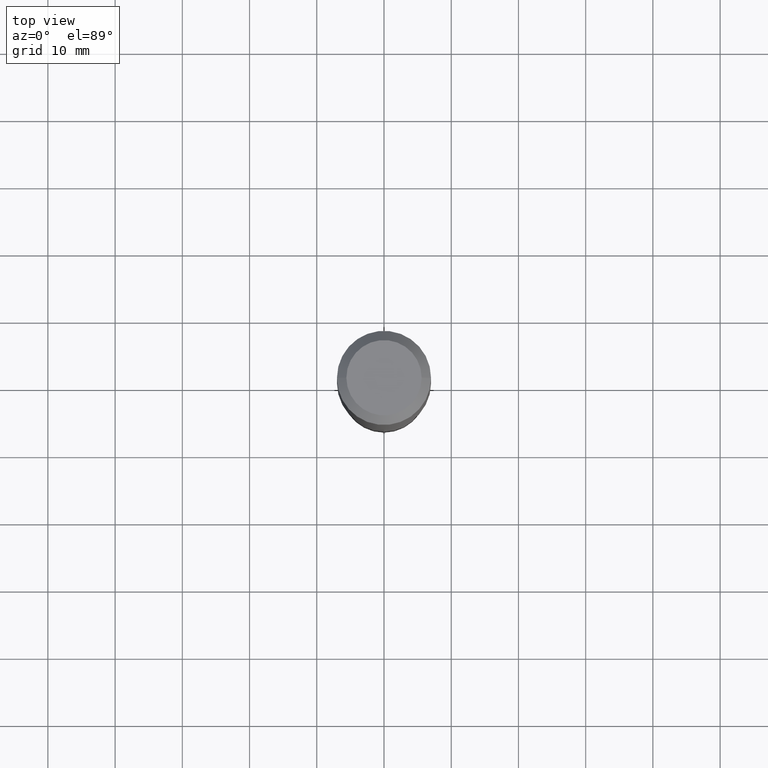
[diagram: clean part render]
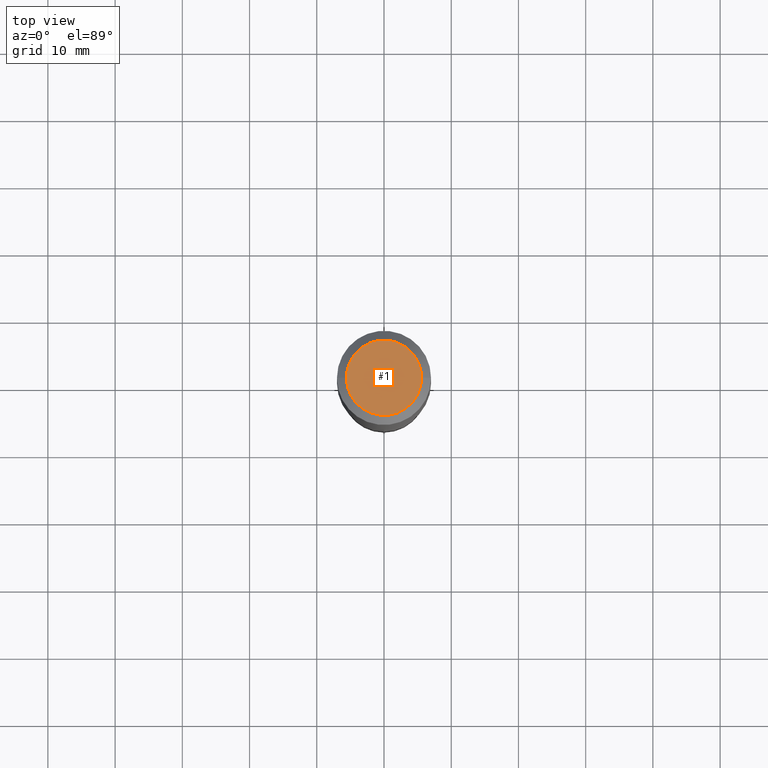
[diagram: same view with one face highlighted and labeled with its STEP entity id]
A machine part, top view. The second image highlights one B-rep face of the part: STEP entity #1.
In plain terms, the highlighted planar face has unit normal (0, -0, -1).
Its self-contained STEP definition (entity closure, byte-faithful):
#1 = ADVANCED_FACE ( 'NONE', ( #217 ), #359, .F. ) ;
#6 = DIRECTION ( 'NONE',  ( -2.445468806185136597E-29, 3.491481338843145583E-15, 1.000000000000000000 ) ) ;
#14 = VERTEX_POINT ( 'NONE', #218 ) ;
#21 = ORIENTED_EDGE ( 'NONE', *, *, #322, .T. ) ;
#22 = AXIS2_PLACEMENT_3D ( 'NONE', #256, #446, #402 ) ;
#23 = AXIS2_PLACEMENT_3D ( 'NONE', #232, #195, #308 ) ;
#61 = CIRCLE ( 'NONE', #259, 0.2204800000000000093 ) ;
#187 = EDGE_CURVE ( 'NONE', #14, #190, #452, .T. ) ;
#190 = VERTEX_POINT ( 'NONE', #469 ) ;
#195 = DIRECTION ( 'NONE',  ( -2.445468806185136597E-29, 3.491481338843145583E-15, 1.000000000000000000 ) ) ;
#217 = FACE_OUTER_BOUND ( 'NONE', #225, .T. ) ;
#218 = CARTESIAN_POINT ( 'NONE',  ( 0.2204800000000000093, -1.797903149065768707E-15, 3.860086710924123164E-18 ) ) ;
#225 = EDGE_LOOP ( 'NONE', ( #21, #228 ) ) ;
#228 = ORIENTED_EDGE ( 'NONE', *, *, #187, .T. ) ;
#232 = CARTESIAN_POINT ( 'NONE',  ( -9.439721640706190018E-47, 1.347742071746724849E-32, 3.860086710912454339E-18 ) ) ;
#256 = CARTESIAN_POINT ( 'NONE',  ( -4.719860820353095009E-47, 6.738710358733624243E-33, 1.930043355456227170E-18 ) ) ;
#259 = AXIS2_PLACEMENT_3D ( 'NONE', #335, #6, #382 ) ;
#308 = DIRECTION ( 'NONE',  ( 1.000000000000000000, -6.982962677686266711E-15, 4.876132675269083677E-29 ) ) ;
#322 = EDGE_CURVE ( 'NONE', #190, #14, #61, .T. ) ;
#335 = CARTESIAN_POINT ( 'NONE',  ( -9.439721640706190018E-47, 1.347742071746724849E-32, 3.860086710912454339E-18 ) ) ;
#359 = PLANE ( 'NONE',  #22 ) ;
#382 = DIRECTION ( 'NONE',  ( 1.000000000000000000, -6.982962677686266711E-15, 4.876132675269083677E-29 ) ) ;
#402 = DIRECTION ( 'NONE',  ( -1.000000000000000000, 6.982962677686265922E-15, -4.876176775795935793E-29 ) ) ;
#446 = DIRECTION ( 'NONE',  ( 2.438088387897960049E-29, -3.491481338843145188E-15, -1.000000000000000000 ) ) ;
#452 = CIRCLE ( 'NONE', #23, 0.2204800000000000093 ) ;
#469 = CARTESIAN_POINT ( 'NONE',  ( -0.2204800000000000093, 1.635828836874783961E-15, 3.860086710901350968E-18 ) ) ;